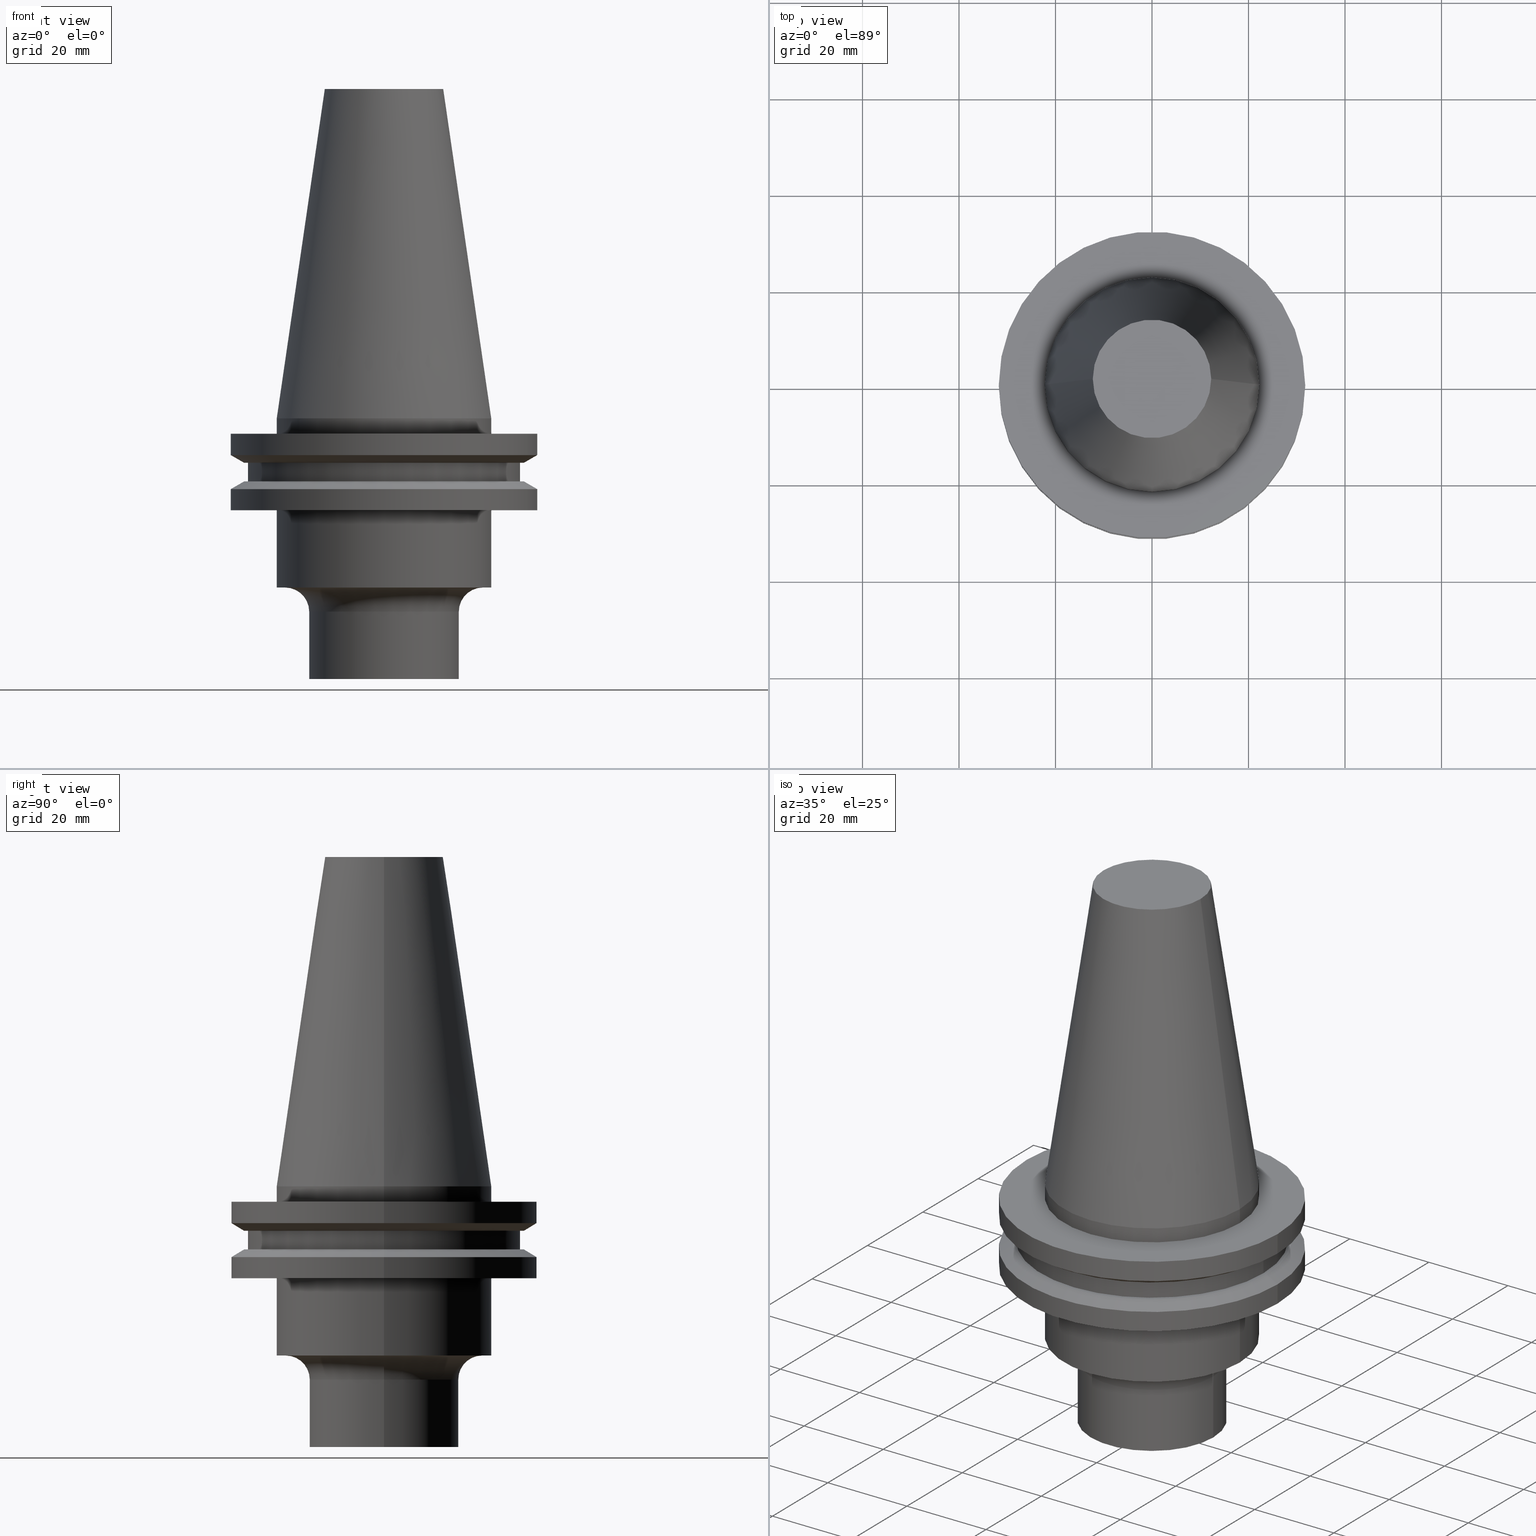
[diagram: canonical four-view strip — front | top / right | iso, engineering-drawing reading convention]
A machine part, canonical four-view strip (front | top / right | iso — engineering-drawing reading convention). The complete STEP part file that produces these views, byte-faithful:
ISO-10303-21;
HEADER;
FILE_DESCRIPTION (( 'STEP AP203' ),
    '1' );
FILE_NAME ('11_326_430.stp',
    '2022-03-07T22:03:33',
    ( '' ),
    ( '' ),
    'SwSTEP 2.0',
    'SolidWorks 2021',
    '' );
FILE_SCHEMA (( 'CONFIG_CONTROL_DESIGN' ));
ENDSEC;

DATA;
#1 = CARTESIAN_POINT ( 'NONE',  ( 0.000000000000000000, 0.000000000000000000, -13.05499999999999794 ) ) ;
#2 = ADVANCED_FACE ( 'NONE', ( #513, #515 ), #155, .F. ) ;
#3 = CARTESIAN_POINT ( 'NONE',  ( 22.22500000000000142, 2.721777511104992849E-15, 0.000000000000000000 ) ) ;
#4 = VERTEX_POINT ( 'NONE', #196 ) ;
#5 = VECTOR ( 'NONE', #271, 999.9999999999998863 ) ;
#6 = DIRECTION ( 'NONE',  ( 0.000000000000000000, 0.000000000000000000, -1.000000000000000000 ) ) ;
#7 = VERTEX_POINT ( 'NONE', #626 ) ;
#8 = CYLINDRICAL_SURFACE ( 'NONE', #413, 22.22500000000000142 ) ;
#9 = ORIENTED_EDGE ( 'NONE', *, *, #397, .T. ) ;
#10 = ADVANCED_FACE ( 'NONE', ( #436 ), #375, .F. ) ;
#11 = DIRECTION ( 'NONE',  ( 1.000000000000000000, 0.000000000000000000, 0.000000000000000000 ) ) ;
#12 = DIRECTION ( 'NONE',  ( 1.000000000000000000, 0.000000000000000000, 0.000000000000000000 ) ) ;
#13 = VERTEX_POINT ( 'NONE', #146 ) ;
#14 = AXIS2_PLACEMENT_3D ( 'NONE', #509, #737, #748 ) ;
#15 = CIRCLE ( 'NONE', #741, 31.75000000000000000 ) ;
#16 = AXIS2_PLACEMENT_3D ( 'NONE', #524, #252, #309 ) ;
#17 = CARTESIAN_POINT ( 'NONE',  ( 0.000000000000000000, 0.000000000000000000, -3.174999999999997158 ) ) ;
#18 = ORIENTED_EDGE ( 'NONE', *, *, #356, .T. ) ;
#19 = PLANE ( 'NONE',  #214 ) ;
#20 = DIRECTION ( 'NONE',  ( 1.000000000000000000, 0.000000000000000000, 0.000000000000000000 ) ) ;
#21 = ORIENTED_EDGE ( 'NONE', *, *, #489, .F. ) ;
#22 = SECURITY_CLASSIFICATION_LEVEL ( 'unclassified' ) ;
#23 = CARTESIAN_POINT ( 'NONE',  ( -31.75000000000000000, 3.888253587292846476E-15, -14.65472339340266572 ) ) ;
#24 = EDGE_CURVE ( 'NONE', #658, #106, #265, .T. ) ;
#25 = ORIENTED_EDGE ( 'NONE', *, *, #635, .T. ) ;
#26 = VECTOR ( 'NONE', #454, 1000.000000000000000 ) ;
#27 = DIRECTION ( 'NONE',  ( 1.000000000000000000, 0.000000000000000000, 0.000000000000000000 ) ) ;
#28 = AXIS2_PLACEMENT_3D ( 'NONE', #330, #43, #342 ) ;
#29 = ORIENTED_EDGE ( 'NONE', *, *, #543, .T. ) ;
#30 = CALENDAR_DATE ( 2022, 7, 3 ) ;
#31 = CARTESIAN_POINT ( 'NONE',  ( 0.000000000000000000, 0.000000000000000000, -40.04999999999999005 ) ) ;
#32 = ORIENTED_EDGE ( 'NONE', *, *, #126, .F. ) ;
#33 = DIRECTION ( 'NONE',  ( -0.000000000000000000, -0.000000000000000000, 1.000000000000000000 ) ) ;
#34 = EDGE_LOOP ( 'NONE', ( #735, #581, #287, #488 ) ) ;
#35 = FACE_OUTER_BOUND ( 'NONE', #34, .T. ) ;
#36 = CYLINDRICAL_SURFACE ( 'NONE', #336, 22.22500000000000142 ) ;
#37 = VECTOR ( 'NONE', #346, 1000.000000000000000 ) ;
#38 = ORIENTED_EDGE ( 'NONE', *, *, #750, .T. ) ;
#39 = CARTESIAN_POINT ( 'NONE',  ( -15.50000000000000000, 1.898202538678397557E-15, 0.000000000000000000 ) ) ;
#40 = ADVANCED_FACE ( 'NONE', ( #319, #82 ), #500, .F. ) ;
#41 = CARTESIAN_POINT ( 'NONE',  ( 0.000000000000000000, 0.000000000000000000, 0.000000000000000000 ) ) ;
#42 = VERTEX_POINT ( 'NONE', #752 ) ;
#43 = DIRECTION ( 'NONE',  ( -0.000000000000000000, -0.000000000000000000, 1.000000000000000000 ) ) ;
#44 = CARTESIAN_POINT ( 'NONE',  ( 0.000000000000000000, 0.000000000000000000, -35.04999999999999716 ) ) ;
#45 = EDGE_CURVE ( 'NONE', #7, #715, #228, .T. ) ;
#46 = ORIENTED_EDGE ( 'NONE', *, *, #409, .T. ) ;
#47 = CARTESIAN_POINT ( 'NONE',  ( 22.22500000000000142, 0.000000000000000000, -19.04999999999999716 ) ) ;
#48 = AXIS2_PLACEMENT_3D ( 'NONE', #220, #762, #290 ) ;
#49 = ORIENTED_EDGE ( 'NONE', *, *, #624, .T. ) ;
#50 = ADVANCED_FACE ( 'NONE', ( #453 ), #690, .T. ) ;
#51 = MECHANICAL_CONTEXT ( 'NONE', #439, 'mechanical' ) ;
#52 = LINE ( 'NONE', #580, #619 ) ;
#53 = VERTEX_POINT ( 'NONE', #235 ) ;
#54 = ADVANCED_FACE ( 'NONE', ( #706 ), #151, .F. ) ;
#55 = DIRECTION ( 'NONE',  ( -0.000000000000000000, -0.000000000000000000, 1.000000000000000000 ) ) ;
#56 = DIRECTION ( 'NONE',  ( -0.000000000000000000, -0.000000000000000000, 1.000000000000000000 ) ) ;
#57 = CC_DESIGN_DATE_AND_TIME_ASSIGNMENT ( #558, #147, ( #703 ) ) ;
#58 = VERTEX_POINT ( 'NONE', #699 ) ;
#59 = LINE ( 'NONE', #426, #339 ) ;
#60 = DIRECTION ( 'NONE',  ( -0.000000000000000000, -0.000000000000000000, 1.000000000000000000 ) ) ;
#61 = EDGE_LOOP ( 'NONE', ( #478, #73 ) ) ;
#62 = VECTOR ( 'NONE', #160, 1000.000000000000000 ) ;
#63 = AXIS2_PLACEMENT_3D ( 'NONE', #659, #548, #490 ) ;
#64 = DIRECTION ( 'NONE',  ( -0.000000000000000000, -0.000000000000000000, 1.000000000000000000 ) ) ;
#65 = EDGE_CURVE ( 'NONE', #675, #331, #122, .T. ) ;
#66 = EDGE_LOOP ( 'NONE', ( #291, #651, #90, #368 ) ) ;
#67 = APPLICATION_PROTOCOL_DEFINITION ( 'international standard', 'config_control_design', 1994, #511 ) ;
#68 = CYLINDRICAL_SURFACE ( 'NONE', #266, 31.75000000000000000 ) ;
#69 = EDGE_CURVE ( 'NONE', #99, #93, #241, .T. ) ;
#70 = ORIENTED_EDGE ( 'NONE', *, *, #221, .T. ) ;
#71 = APPROVAL_STATUS ( 'not_yet_approved' ) ;
#72 = DIRECTION ( 'NONE',  ( -0.000000000000000000, -0.000000000000000000, 1.000000000000000000 ) ) ;
#73 = ORIENTED_EDGE ( 'NONE', *, *, #746, .F. ) ;
#74 = AXIS2_PLACEMENT_3D ( 'NONE', #167, #530, #650 ) ;
#75 = ADVANCED_FACE ( 'NONE', ( #471 ), #36, .T. ) ;
#76 = VECTOR ( 'NONE', #257, 1000.000000000000000 ) ;
#77 = APPROVAL_ROLE ( '' ) ;
#78 = CARTESIAN_POINT ( 'NONE',  ( 0.000000000000000000, 0.000000000000000000, 0.000000000000000000 ) ) ;
#79 = DIRECTION ( 'NONE',  ( 0.000000000000000000, 0.000000000000000000, -1.000000000000000000 ) ) ;
#80 = EDGE_CURVE ( 'NONE', #93, #99, #568, .T. ) ;
#81 = CARTESIAN_POINT ( 'NONE',  ( 0.000000000000000000, 0.000000000000000000, -3.174999999999997158 ) ) ;
#82 = FACE_OUTER_BOUND ( 'NONE', #364, .T. ) ;
#83 = FACE_OUTER_BOUND ( 'NONE', #574, .T. ) ;
#84 = DIRECTION ( 'NONE',  ( 0.000000000000000000, -0.000000000000000000, 1.000000000000000000 ) ) ;
#85 = CIRCLE ( 'NONE', #643, 31.75000000000000000 ) ;
#86 = DIRECTION ( 'NONE',  ( 0.1443082272672999711, 1.767266086135276757E-17, -0.9895327864921755756 ) ) ;
#87 = CIRCLE ( 'NONE', #63, 22.22500000000000142 ) ;
#88 = ORIENTED_EDGE ( 'NONE', *, *, #260, .F. ) ;
#89 = DIRECTION ( 'NONE',  ( -0.000000000000000000, -0.000000000000000000, 1.000000000000000000 ) ) ;
#90 = ORIENTED_EDGE ( 'NONE', *, *, #217, .F. ) ;
#91 = CARTESIAN_POINT ( 'NONE',  ( 0.000000000000000000, 0.000000000000000000, 68.25000000000000000 ) ) ;
#92 = DIRECTION ( 'NONE',  ( 1.000000000000000000, 0.000000000000000000, 0.000000000000000000 ) ) ;
#93 = VERTEX_POINT ( 'NONE', #597 ) ;
#94 = DIRECTION ( 'NONE',  ( -0.000000000000000000, -0.000000000000000000, 1.000000000000000000 ) ) ;
#95 = AXIS2_PLACEMENT_3D ( 'NONE', #108, #462, #173 ) ;
#96 = AXIS2_PLACEMENT_3D ( 'NONE', #592, #616, #118 ) ;
#97 = CARTESIAN_POINT ( 'NONE',  ( 0.000000000000000000, 28.97919780457007732, -9.204999999999996518 ) ) ;
#98 =( GEOMETRIC_REPRESENTATION_CONTEXT ( 3 ) GLOBAL_UNCERTAINTY_ASSIGNED_CONTEXT ( ( #394 ) ) GLOBAL_UNIT_ASSIGNED_CONTEXT ( ( #667, #186, #120 ) ) REPRESENTATION_CONTEXT ( 'NONE', 'WORKASPACE' ) );
#99 = VERTEX_POINT ( 'NONE', #641 ) ;
#100 = EDGE_CURVE ( 'NONE', #672, #405, #177, .T. ) ;
#101 = LINE ( 'NONE', #591, #62 ) ;
#102 = DIRECTION ( 'NONE',  ( -0.000000000000000000, -0.000000000000000000, 1.000000000000000000 ) ) ;
#103 = EDGE_LOOP ( 'NONE', ( #653, #250 ) ) ;
#104 = DIRECTION ( 'NONE',  ( -0.000000000000000000, -0.000000000000000000, 1.000000000000000000 ) ) ;
#105 = DIRECTION ( 'NONE',  ( 0.000000000000000000, 0.000000000000000000, -1.000000000000000000 ) ) ;
#106 = VERTEX_POINT ( 'NONE', #279 ) ;
#107 = DIRECTION ( 'NONE',  ( -0.000000000000000000, -0.000000000000000000, 1.000000000000000000 ) ) ;
#108 = CARTESIAN_POINT ( 'NONE',  ( 0.000000000000000000, 0.000000000000000000, -40.04999999999999716 ) ) ;
#109 = CIRCLE ( 'NONE', #700, 28.97919780457007732 ) ;
#110 = EDGE_CURVE ( 'NONE', #99, #106, #52, .T. ) ;
#111 = EDGE_LOOP ( 'NONE', ( #410, #475 ) ) ;
#112 = CIRCLE ( 'NONE', #445, 28.17999999999999972 ) ;
#113 = CC_DESIGN_SECURITY_CLASSIFICATION ( #703, ( #702 ) ) ;
#114 = CARTESIAN_POINT ( 'NONE',  ( 0.000000000000000000, 0.000000000000000000, -13.05499999999999794 ) ) ;
#115 = DIRECTION ( 'NONE',  ( -0.000000000000000000, -0.000000000000000000, 1.000000000000000000 ) ) ;
#116 = ORIENTED_EDGE ( 'NONE', *, *, #746, .T. ) ;
#117 = DIRECTION ( 'NONE',  ( -0.8660254037844389297, 1.060575238724907285E-16, 0.4999999999999995004 ) ) ;
#118 = DIRECTION ( 'NONE',  ( 1.000000000000000000, 0.000000000000000000, 0.000000000000000000 ) ) ;
#119 = ORIENTED_EDGE ( 'NONE', *, *, #332, .T. ) ;
#120 =( NAMED_UNIT ( * ) SI_UNIT ( $, .STERADIAN. ) SOLID_ANGLE_UNIT ( ) );
#121 = DIRECTION ( 'NONE',  ( 1.000000000000000000, 0.000000000000000000, 0.000000000000000000 ) ) ;
#122 = CIRCLE ( 'NONE', #504, 28.97919780457008088 ) ;
#123 = ORIENTED_EDGE ( 'NONE', *, *, #80, .T. ) ;
#124 = CIRCLE ( 'NONE', #689, 20.50000000000000000 ) ;
#125 = VECTOR ( 'NONE', #107, 1000.000000000000000 ) ;
#126 = EDGE_CURVE ( 'NONE', #129, #236, #276, .T. ) ;
#127 = CYLINDRICAL_SURFACE ( 'NONE', #480, 15.50000000000000000 ) ;
#128 = EDGE_CURVE ( 'NONE', #311, #53, #758, .T. ) ;
#129 = VERTEX_POINT ( 'NONE', #392 ) ;
#130 = SHAPE_DEFINITION_REPRESENTATION ( #773, #180 ) ;
#131 = CARTESIAN_POINT ( 'NONE',  ( 0.000000000000000000, 0.000000000000000000, 0.000000000000000000 ) ) ;
#132 = VERTEX_POINT ( 'NONE', #340 ) ;
#133 = DATE_AND_TIME ( #434, #400 ) ;
#134 = CARTESIAN_POINT ( 'NONE',  ( 31.75000000000000000, 0.000000000000000000, 68.25000000000000000 ) ) ;
#135 = ORIENTED_EDGE ( 'NONE', *, *, #100, .F. ) ;
#136 = ADVANCED_FACE ( 'NONE', ( #637, #525 ), #766, .F. ) ;
#137 = AXIS2_PLACEMENT_3D ( 'NONE', #560, #623, #20 ) ;
#138 = VECTOR ( 'NONE', #142, 1000.000000000000000 ) ;
#139 = PERSON_AND_ORGANIZATION_ROLE ( 'creator' ) ;
#140 = AXIS2_PLACEMENT_3D ( 'NONE', #333, #94, #757 ) ;
#141 = PERSON ( 'UNSPECIFIED', 'UNSPECIFIED', 'UNSPECIFIED', ('UNSPECIFIED'), ('UNSPECIFIED'), ('UNSPECIFIED') ) ;
#142 = DIRECTION ( 'NONE',  ( -0.000000000000000000, -0.000000000000000000, 1.000000000000000000 ) ) ;
#143 = ORIENTED_EDGE ( 'NONE', *, *, #367, .F. ) ;
#144 = VERTEX_POINT ( 'NONE', #334 ) ;
#145 = LINE ( 'NONE', #327, #5 ) ;
#146 = CARTESIAN_POINT ( 'NONE',  ( 31.75000000000000000, 0.000000000000000000, -14.65472339340266572 ) ) ;
#147 = DATE_TIME_ROLE ( 'classification_date' ) ;
#148 = LINE ( 'NONE', #629, #138 ) ;
#149 = EDGE_LOOP ( 'NONE', ( #238, #308, #420, #264 ) ) ;
#150 = MANIFOLD_SOLID_BREP ( 'CKB', #427 ) ;
#151 = TOROIDAL_SURFACE ( 'NONE', #95, 20.50000000000000000, 4.999999999999999112 ) ;
#152 = AXIS2_PLACEMENT_3D ( 'NONE', #246, #56, #484 ) ;
#153 = DIRECTION ( 'NONE',  ( -1.000000000000000000, 0.000000000000000000, -0.000000000000000000 ) ) ;
#154 = CONICAL_SURFACE ( 'NONE', #205, 22.22500000000000142, 0.1448138465474119174 ) ;
#155 = PLANE ( 'NONE',  #411 ) ;
#156 = EDGE_CURVE ( 'NONE', #168, #483, #189, .T. ) ;
#157 = FACE_OUTER_BOUND ( 'NONE', #732, .T. ) ;
#158 = DIRECTION ( 'NONE',  ( -0.000000000000000000, -0.000000000000000000, 1.000000000000000000 ) ) ;
#159 = EDGE_CURVE ( 'NONE', #42, #526, #124, .T. ) ;
#160 = DIRECTION ( 'NONE',  ( -0.000000000000000000, -0.000000000000000000, 1.000000000000000000 ) ) ;
#161 = DIRECTION ( 'NONE',  ( 1.000000000000000000, 0.000000000000000000, 0.000000000000000000 ) ) ;
#162 = ORIENTED_EDGE ( 'NONE', *, *, #332, .F. ) ;
#163 = ADVANCED_FACE ( 'NONE', ( #395 ), #277, .T. ) ;
#164 = CYLINDRICAL_SURFACE ( 'NONE', #28, 22.22500000000000142 ) ;
#165 = DESIGN_CONTEXT ( 'detailed design', #511, 'design' ) ;
#166 = AXIS2_PLACEMENT_3D ( 'NONE', #656, #248, #353 ) ;
#167 = CARTESIAN_POINT ( 'NONE',  ( 0.000000000000000000, 0.000000000000000000, -35.04999999999999716 ) ) ;
#168 = VERTEX_POINT ( 'NONE', #282 ) ;
#169 = DIRECTION ( 'NONE',  ( 1.000000000000000000, 0.000000000000000000, 0.000000000000000000 ) ) ;
#170 = CARTESIAN_POINT ( 'NONE',  ( -15.50000000000000000, 1.898202538678397557E-15, -40.04999999999999005 ) ) ;
#171 = ORIENTED_EDGE ( 'NONE', *, *, #662, .F. ) ;
#172 = CARTESIAN_POINT ( 'NONE',  ( 0.000000000000000000, 0.000000000000000000, 68.25000000000000000 ) ) ;
#173 = DIRECTION ( 'NONE',  ( 1.000000000000000000, 0.000000000000000000, 0.000000000000000000 ) ) ;
#174 = ORIENTED_EDGE ( 'NONE', *, *, #499, .F. ) ;
#175 = PERSON_AND_ORGANIZATION ( #141, #596 ) ;
#176 = CARTESIAN_POINT ( 'NONE',  ( 0.000000000000000000, 0.000000000000000000, 68.25000000000000000 ) ) ;
#177 = CIRCLE ( 'NONE', #313, 15.49999999999999822 ) ;
#178 = EDGE_LOOP ( 'NONE', ( #707, #665 ) ) ;
#179 = AXIS2_PLACEMENT_3D ( 'NONE', #695, #473, #518 ) ;
#180 = ADVANCED_BREP_SHAPE_REPRESENTATION ( '11_326_430', ( #150, #555 ), #98 ) ;
#181 = CARTESIAN_POINT ( 'NONE',  ( -28.97919780457007732, 3.548928183322474856E-15, -9.205000000000005400 ) ) ;
#182 = CARTESIAN_POINT ( 'NONE',  ( 0.000000000000000000, 0.000000000000000000, 68.25000000000000000 ) ) ;
#183 = EDGE_LOOP ( 'NONE', ( #556, #272, #226, #207 ) ) ;
#184 = PLANE ( 'NONE',  #505 ) ;
#185 = ORIENTED_EDGE ( 'NONE', *, *, #476, .T. ) ;
#186 =( NAMED_UNIT ( * ) PLANE_ANGLE_UNIT ( ) SI_UNIT ( $, .RADIAN. ) );
#187 = CARTESIAN_POINT ( 'NONE',  ( 0.000000000000000000, 31.75000000000000000, -3.174999999999993605 ) ) ;
#188 = ORIENTED_EDGE ( 'NONE', *, *, #156, .T. ) ;
#189 = CIRCLE ( 'NONE', #48, 28.17999999999999972 ) ;
#190 = TOROIDAL_SURFACE ( 'NONE', #179, 20.50000000000000000, 4.999999999999999112 ) ;
#191 = CARTESIAN_POINT ( 'NONE',  ( 22.22500000000000142, 0.000000000000000000, -3.174999999999997158 ) ) ;
#192 = CARTESIAN_POINT ( 'NONE',  ( -20.50000000000000000, 2.510525938252074481E-15, -40.04999999999999716 ) ) ;
#193 = EDGE_LOOP ( 'NONE', ( #417, #116, #49, #531 ) ) ;
#194 = LINE ( 'NONE', #435, #754 ) ;
#195 = EDGE_CURVE ( 'NONE', #58, #472, #522, .T. ) ;
#196 = CARTESIAN_POINT ( 'NONE',  ( 31.74999999999999289, 0.000000000000000000, -19.04999999999999716 ) ) ;
#197 = DATE_TIME_ROLE ( 'creation_date' ) ;
#198 = DIRECTION ( 'NONE',  ( -0.000000000000000000, -0.000000000000000000, 1.000000000000000000 ) ) ;
#199 = VERTEX_POINT ( 'NONE', #170 ) ;
#200 = AXIS2_PLACEMENT_3D ( 'NONE', #390, #634, #465 ) ;
#201 = PRODUCT_DEFINITION ( 'UNKNOWN', '', #702, #165 ) ;
#202 = ORIENTED_EDGE ( 'NONE', *, *, #649, .T. ) ;
#203 = AXIS2_PLACEMENT_3D ( 'NONE', #354, #6, #301 ) ;
#204 = PERSON_AND_ORGANIZATION_ROLE ( 'creator' ) ;
#205 = AXIS2_PLACEMENT_3D ( 'NONE', #78, #498, #736 ) ;
#206 = DIRECTION ( 'NONE',  ( 1.000000000000000000, 0.000000000000000000, 0.000000000000000000 ) ) ;
#207 = ORIENTED_EDGE ( 'NONE', *, *, #270, .F. ) ;
#208 = DIRECTION ( 'NONE',  ( 1.000000000000000000, 0.000000000000000000, 0.000000000000000000 ) ) ;
#209 = DIRECTION ( 'NONE',  ( -0.000000000000000000, -0.000000000000000000, 1.000000000000000000 ) ) ;
#210 = ADVANCED_FACE ( 'NONE', ( #589 ), #404, .T. ) ;
#211 = CC_DESIGN_DATE_AND_TIME_ASSIGNMENT ( #133, #197, ( #201 ) ) ;
#212 = DIRECTION ( 'NONE',  ( -0.000000000000000000, -0.000000000000000000, 1.000000000000000000 ) ) ;
#213 = VERTEX_POINT ( 'NONE', #537 ) ;
#214 = AXIS2_PLACEMENT_3D ( 'NONE', #742, #687, #153 ) ;
#215 = CARTESIAN_POINT ( 'NONE',  ( 12.27178102086201150, 2.112318622904291439E-15, 68.25000000000000000 ) ) ;
#216 = APPROVAL_PERSON_ORGANIZATION ( #372, #292, #680 ) ;
#217 = EDGE_CURVE ( 'NONE', #494, #311, #443, .T. ) ;
#218 = DIRECTION ( 'NONE',  ( 1.000000000000000000, 0.000000000000000000, 0.000000000000000000 ) ) ;
#219 = CARTESIAN_POINT ( 'NONE',  ( 0.000000000000000000, 0.000000000000000000, -14.65472339340266572 ) ) ;
#220 = CARTESIAN_POINT ( 'NONE',  ( 0.000000000000000000, 0.000000000000000000, -9.204999999999991189 ) ) ;
#221 = EDGE_CURVE ( 'NONE', #132, #682, #302, .T. ) ;
#222 = EDGE_LOOP ( 'NONE', ( #614, #442, #280, #283 ) ) ;
#223 = CC_DESIGN_PERSON_AND_ORGANIZATION_ASSIGNMENT ( #733, #618, ( #702 ) ) ;
#224 = DIRECTION ( 'NONE',  ( 1.000000000000000000, 0.000000000000000000, 0.000000000000000000 ) ) ;
#225 = DIRECTION ( 'NONE',  ( -0.000000000000000000, -0.000000000000000000, 1.000000000000000000 ) ) ;
#226 = ORIENTED_EDGE ( 'NONE', *, *, #416, .T. ) ;
#227 = CC_DESIGN_PERSON_AND_ORGANIZATION_ASSIGNMENT ( #612, #712, ( #296 ) ) ;
#228 = CIRCLE ( 'NONE', #14, 22.22500000000000142 ) ;
#229 = FACE_OUTER_BOUND ( 'NONE', #647, .T. ) ;
#230 = AXIS2_PLACEMENT_3D ( 'NONE', #17, #747, #268 ) ;
#231 = CIRCLE ( 'NONE', #140, 15.50000000000000000 ) ;
#232 = CARTESIAN_POINT ( 'NONE',  ( 0.000000000000000000, 0.000000000000000000, -35.04999999999999716 ) ) ;
#233 = ORIENTED_EDGE ( 'NONE', *, *, #195, .F. ) ;
#234 = CYLINDRICAL_SURFACE ( 'NONE', #507, 31.75000000000000000 ) ;
#235 = CARTESIAN_POINT ( 'NONE',  ( -31.75000000000000000, 3.888253587292846476E-15, -3.174999999999997158 ) ) ;
#236 = VERTEX_POINT ( 'NONE', #3 ) ;
#237 = DIRECTION ( 'NONE',  ( 1.000000000000000000, 0.000000000000000000, 0.000000000000000000 ) ) ;
#238 = ORIENTED_EDGE ( 'NONE', *, *, #683, .F. ) ;
#239 = DIRECTION ( 'NONE',  ( -0.000000000000000000, -0.000000000000000000, 1.000000000000000000 ) ) ;
#240 = CARTESIAN_POINT ( 'NONE',  ( 0.000000000000000000, 0.000000000000000000, -3.174999999999997158 ) ) ;
#241 = CIRCLE ( 'NONE', #74, 22.22500000000000142 ) ;
#242 = ADVANCED_FACE ( 'NONE', ( #610 ), #482, .T. ) ;
#243 = ORIENTED_EDGE ( 'NONE', *, *, #635, .F. ) ;
#244 = AXIS2_PLACEMENT_3D ( 'NONE', #765, #470, #169 ) ;
#245 = CARTESIAN_POINT ( 'NONE',  ( 0.000000000000000000, 0.000000000000000000, -9.205000000000005400 ) ) ;
#246 = CARTESIAN_POINT ( 'NONE',  ( 0.000000000000000000, 0.000000000000000000, -13.05499999999999794 ) ) ;
#247 = ORIENTED_EDGE ( 'NONE', *, *, #126, .T. ) ;
#248 = DIRECTION ( 'NONE',  ( -0.000000000000000000, -0.000000000000000000, 1.000000000000000000 ) ) ;
#249 = PLANE ( 'NONE',  #678 ) ;
#250 = ORIENTED_EDGE ( 'NONE', *, *, #321, .T. ) ;
#251 = ADVANCED_FACE ( 'NONE', ( #432 ), #540, .T. ) ;
#252 = DIRECTION ( 'NONE',  ( -0.000000000000000000, -0.000000000000000000, 1.000000000000000000 ) ) ;
#253 = DIRECTION ( 'NONE',  ( 1.000000000000000000, 0.000000000000000000, 0.000000000000000000 ) ) ;
#254 = ORIENTED_EDGE ( 'NONE', *, *, #360, .T. ) ;
#255 = CIRCLE ( 'NONE', #457, 31.75000000000000000 ) ;
#256 = CC_DESIGN_APPROVAL ( #564, ( #201 ) ) ;
#257 = DIRECTION ( 'NONE',  ( -0.000000000000000000, -0.000000000000000000, 1.000000000000000000 ) ) ;
#258 = EDGE_LOOP ( 'NONE', ( #523, #449 ) ) ;
#259 = CYLINDRICAL_SURFACE ( 'NONE', #289, 28.17999999999999972 ) ;
#260 = EDGE_CURVE ( 'NONE', #472, #13, #85, .T. ) ;
#261 = ORIENTED_EDGE ( 'NONE', *, *, #584, .T. ) ;
#262 = DATE_AND_TIME ( #495, #716 ) ;
#263 = CARTESIAN_POINT ( 'NONE',  ( -28.17999999999999972, 3.451054679997241634E-15, -9.204999999999991189 ) ) ;
#264 = ORIENTED_EDGE ( 'NONE', *, *, #467, .F. ) ;
#265 = CIRCLE ( 'NONE', #456, 22.22500000000000142 ) ;
#266 = AXIS2_PLACEMENT_3D ( 'NONE', #731, #370, #12 ) ;
#267 = APPROVAL_DATE_TIME ( #566, #406 ) ;
#268 = DIRECTION ( 'NONE',  ( 1.000000000000000000, 0.000000000000000000, 0.000000000000000000 ) ) ;
#269 = DIRECTION ( 'NONE',  ( 1.000000000000000000, 0.000000000000000000, 0.000000000000000000 ) ) ;
#270 = EDGE_CURVE ( 'NONE', #311, #494, #15, .T. ) ;
#271 = DIRECTION ( 'NONE',  ( -0.1443082272672999711, 0.000000000000000000, -0.9895327864921755756 ) ) ;
#272 = ORIENTED_EDGE ( 'NONE', *, *, #382, .T. ) ;
#273 = EDGE_CURVE ( 'NONE', #494, #213, #307, .T. ) ;
#274 = DIRECTION ( 'NONE',  ( 1.000000000000000000, 0.000000000000000000, 0.000000000000000000 ) ) ;
#275 = CARTESIAN_POINT ( 'NONE',  ( 0.000000000000000000, 28.17999999999999972, -13.05499999999999794 ) ) ;
#276 = CIRCLE ( 'NONE', #374, 22.22500000000000142 ) ;
#277 = CONICAL_SURFACE ( 'NONE', #376, 22.22500000000000142, 0.1448138465474119174 ) ;
#278 = ADVANCED_FACE ( 'NONE', ( #546 ), #127, .T. ) ;
#279 = CARTESIAN_POINT ( 'NONE',  ( -22.22500000000000142, 2.721777511104992849E-15, -19.04999999999999716 ) ) ;
#280 = ORIENTED_EDGE ( 'NONE', *, *, #437, .F. ) ;
#281 = DIRECTION ( 'NONE',  ( 1.000000000000000000, 0.000000000000000000, 0.000000000000000000 ) ) ;
#282 = CARTESIAN_POINT ( 'NONE',  ( 28.17999999999999972, 0.000000000000000000, -9.204999999999991189 ) ) ;
#283 = ORIENTED_EDGE ( 'NONE', *, *, #425, .F. ) ;
#284 = CARTESIAN_POINT ( 'NONE',  ( 31.75000000000000000, 3.888253587292846476E-15, -14.65472339340266572 ) ) ;
#285 = CARTESIAN_POINT ( 'NONE',  ( 0.000000000000000000, 0.000000000000000000, -53.99999999999999289 ) ) ;
#286 = ADVANCED_FACE ( 'NONE', ( #298 ), #8, .T. ) ;
#287 = ORIENTED_EDGE ( 'NONE', *, *, #489, .T. ) ;
#288 = CYLINDRICAL_SURFACE ( 'NONE', #541, 31.75000000000000000 ) ;
#289 = AXIS2_PLACEMENT_3D ( 'NONE', #322, #508, #208 ) ;
#290 = DIRECTION ( 'NONE',  ( 1.000000000000000000, 0.000000000000000000, 0.000000000000000000 ) ) ;
#291 = ORIENTED_EDGE ( 'NONE', *, *, #714, .T. ) ;
#292 = APPROVAL ( #383, 'UNSPECIFIED' ) ;
#293 = CARTESIAN_POINT ( 'NONE',  ( 0.000000000000000000, 0.000000000000000000, -9.205000000000005400 ) ) ;
#294 = CARTESIAN_POINT ( 'NONE',  ( 0.000000000000000000, 0.000000000000000000, 68.25000000000000000 ) ) ;
#295 = EDGE_LOOP ( 'NONE', ( #497, #722, #772, #299 ) ) ;
#296 = PRODUCT ( '11_326_430', '11_326_430', '', ( #51 ) ) ;
#297 = DIRECTION ( 'NONE',  ( 1.000000000000000000, 0.000000000000000000, 0.000000000000000000 ) ) ;
#298 = FACE_OUTER_BOUND ( 'NONE', #638, .T. ) ;
#299 = ORIENTED_EDGE ( 'NONE', *, *, #273, .F. ) ;
#300 = ADVANCED_FACE ( 'NONE', ( #613, #542 ), #184, .F. ) ;
#301 = DIRECTION ( 'NONE',  ( -1.000000000000000000, 0.000000000000000000, 0.000000000000000000 ) ) ;
#302 = CIRCLE ( 'NONE', #621, 12.27178102086201150 ) ;
#303 = AXIS2_PLACEMENT_3D ( 'NONE', #358, #115, #533 ) ;
#304 = EDGE_LOOP ( 'NONE', ( #711, #463 ) ) ;
#305 = AXIS2_PLACEMENT_3D ( 'NONE', #698, #692, #753 ) ;
#306 = LOCAL_TIME ( 16, 3, 33.00000000000000000, #447 ) ;
#307 = LINE ( 'NONE', #477, #569 ) ;
#308 = ORIENTED_EDGE ( 'NONE', *, *, #719, .T. ) ;
#309 = DIRECTION ( 'NONE',  ( 1.000000000000000000, 0.000000000000000000, 0.000000000000000000 ) ) ;
#310 = DIRECTION ( 'NONE',  ( -0.000000000000000000, -0.000000000000000000, 1.000000000000000000 ) ) ;
#311 = VERTEX_POINT ( 'NONE', #366 ) ;
#312 = DIRECTION ( 'NONE',  ( -1.000000000000000000, 1.224646799147352714E-16, 0.000000000000000000 ) ) ;
#313 = AXIS2_PLACEMENT_3D ( 'NONE', #285, #710, #218 ) ;
#314 = EDGE_LOOP ( 'NONE', ( #188, #764 ) ) ;
#315 = AXIS2_PLACEMENT_3D ( 'NONE', #512, #567, #373 ) ;
#316 = CONICAL_SURFACE ( 'NONE', #414, 28.97919780457007732, 1.047197551196598297 ) ;
#317 = PERSON_AND_ORGANIZATION_ROLE ( 'classification_officer' ) ;
#318 = CARTESIAN_POINT ( 'NONE',  ( 0.000000000000000000, 0.000000000000000000, 68.25000000000000000 ) ) ;
#319 = FACE_BOUND ( 'NONE', #178, .T. ) ;
#320 = DATE_AND_TIME ( #30, #622 ) ;
#321 = EDGE_CURVE ( 'NONE', #331, #675, #493, .T. ) ;
#322 = CARTESIAN_POINT ( 'NONE',  ( 0.000000000000000000, 0.000000000000000000, 68.25000000000000000 ) ) ;
#323 = ORIENTED_EDGE ( 'NONE', *, *, #683, .T. ) ;
#324 = CARTESIAN_POINT ( 'NONE',  ( -20.50000000000000000, 2.510525938252074481E-15, -35.04999999999999716 ) ) ;
#325 = ORIENTED_EDGE ( 'NONE', *, *, #499, .T. ) ;
#326 = CONICAL_SURFACE ( 'NONE', #469, 31.75000000000000000, 1.047197551196597853 ) ;
#327 = CARTESIAN_POINT ( 'NONE',  ( -22.22500000000000142, 0.000000000000000000, 0.000000000000000000 ) ) ;
#328 = ORIENTED_EDGE ( 'NONE', *, *, #728, .F. ) ;
#329 = ADVANCED_FACE ( 'NONE', ( #423 ), #68, .T. ) ;
#330 = CARTESIAN_POINT ( 'NONE',  ( 0.000000000000000000, 0.000000000000000000, 68.25000000000000000 ) ) ;
#331 = VERTEX_POINT ( 'NONE', #724 ) ;
#332 = EDGE_CURVE ( 'NONE', #53, #213, #527, .T. ) ;
#333 = CARTESIAN_POINT ( 'NONE',  ( 0.000000000000000000, 0.000000000000000000, -40.04999999999999005 ) ) ;
#334 = CARTESIAN_POINT ( 'NONE',  ( 28.97919780457007732, 0.000000000000000000, -9.205000000000005400 ) ) ;
#335 = ORIENTED_EDGE ( 'NONE', *, *, #774, .T. ) ;
#336 = AXIS2_PLACEMENT_3D ( 'NONE', #294, #646, #401 ) ;
#337 = VECTOR ( 'NONE', #86, 999.9999999999998863 ) ;
#338 = CARTESIAN_POINT ( 'NONE',  ( -28.97919780457008088, 0.000000000000000000, -13.05499999999999794 ) ) ;
#339 = VECTOR ( 'NONE', #723, 1000.000000000000000 ) ;
#340 = CARTESIAN_POINT ( 'NONE',  ( -12.27178102086201150, 0.000000000000000000, 68.25000000000000000 ) ) ;
#341 = ORIENTED_EDGE ( 'NONE', *, *, #584, .F. ) ;
#342 = DIRECTION ( 'NONE',  ( 1.000000000000000000, 0.000000000000000000, 0.000000000000000000 ) ) ;
#343 = ADVANCED_FACE ( 'NONE', ( #487, #419 ), #249, .F. ) ;
#344 = DIRECTION ( 'NONE',  ( -1.000000000000000000, 0.000000000000000000, 0.000000000000000000 ) ) ;
#345 = EDGE_LOOP ( 'NONE', ( #38, #335, #739, #605 ) ) ;
#346 = DIRECTION ( 'NONE',  ( 0.8660254037844387076, 1.060575238724906915E-16, -0.4999999999999998890 ) ) ;
#347 = CARTESIAN_POINT ( 'NONE',  ( -31.75000000000000000, 3.888253587292846476E-15, 68.25000000000000000 ) ) ;
#348 = ORIENTED_EDGE ( 'NONE', *, *, #467, .T. ) ;
#349 = AXIS2_PLACEMENT_3D ( 'NONE', #182, #671, #713 ) ;
#350 = APPROVAL_PERSON_ORGANIZATION ( #175, #564, #749 ) ;
#351 = DIRECTION ( 'NONE',  ( 1.000000000000000000, 0.000000000000000000, 0.000000000000000000 ) ) ;
#352 = ORIENTED_EDGE ( 'NONE', *, *, #110, .T. ) ;
#353 = DIRECTION ( 'NONE',  ( 1.000000000000000000, 0.000000000000000000, 0.000000000000000000 ) ) ;
#354 = CARTESIAN_POINT ( 'NONE',  ( 0.000000000000000000, 0.000000000000000000, -14.65472339340266572 ) ) ;
#355 = ORIENTED_EDGE ( 'NONE', *, *, #321, .F. ) ;
#356 = EDGE_CURVE ( 'NONE', #526, #199, #595, .T. ) ;
#357 = FACE_OUTER_BOUND ( 'NONE', #183, .T. ) ;
#358 = CARTESIAN_POINT ( 'NONE',  ( 0.000000000000000000, 0.000000000000000000, -7.605276606597335842 ) ) ;
#359 = ORIENTED_EDGE ( 'NONE', *, *, #437, .T. ) ;
#360 = EDGE_CURVE ( 'NONE', #213, #53, #255, .T. ) ;
#361 = DIRECTION ( 'NONE',  ( 0.000000000000000000, -0.000000000000000000, 1.000000000000000000 ) ) ;
#362 = CIRCLE ( 'NONE', #554, 12.27178102086201150 ) ;
#363 = AXIS2_PLACEMENT_3D ( 'NONE', #645, #464, #274 ) ;
#364 = EDGE_LOOP ( 'NONE', ( #777, #669 ) ) ;
#365 = CARTESIAN_POINT ( 'NONE',  ( 0.000000000000000000, 0.000000000000000000, 0.000000000000000000 ) ) ;
#366 = CARTESIAN_POINT ( 'NONE',  ( -31.75000000000000000, 3.888253587292846476E-15, -7.605276606597335842 ) ) ;
#367 = EDGE_CURVE ( 'NONE', #93, #658, #148, .T. ) ;
#368 = ORIENTED_EDGE ( 'NONE', *, *, #416, .F. ) ;
#369 = PERSON_AND_ORGANIZATION ( #141, #596 ) ;
#370 = DIRECTION ( 'NONE',  ( -0.000000000000000000, -0.000000000000000000, 1.000000000000000000 ) ) ;
#371 = ORIENTED_EDGE ( 'NONE', *, *, #65, .F. ) ;
#372 = PERSON_AND_ORGANIZATION ( #141, #596 ) ;
#373 = DIRECTION ( 'NONE',  ( 1.000000000000000000, 0.000000000000000000, 0.000000000000000000 ) ) ;
#374 = AXIS2_PLACEMENT_3D ( 'NONE', #771, #408, #519 ) ;
#375 = PLANE ( 'NONE',  #137 ) ;
#376 = AXIS2_PLACEMENT_3D ( 'NONE', #41, #105, #344 ) ;
#377 = VECTOR ( 'NONE', #709, 1000.000000000000000 ) ;
#378 = PERSON_AND_ORGANIZATION ( #141, #596 ) ;
#379 = DIRECTION ( 'NONE',  ( 1.000000000000000000, 0.000000000000000000, 0.000000000000000000 ) ) ;
#380 = ORIENTED_EDGE ( 'NONE', *, *, #69, .T. ) ;
#381 = EDGE_LOOP ( 'NONE', ( #135, #598 ) ) ;
#382 = EDGE_CURVE ( 'NONE', #642, #144, #109, .T. ) ;
#383 = APPROVAL_STATUS ( 'not_yet_approved' ) ;
#384 = DIRECTION ( 'NONE',  ( 0.000000000000000000, 0.000000000000000000, -1.000000000000000000 ) ) ;
#385 = DIRECTION ( 'NONE',  ( 1.000000000000000000, 0.000000000000000000, 0.000000000000000000 ) ) ;
#386 = FACE_OUTER_BOUND ( 'NONE', #193, .T. ) ;
#387 = ORIENTED_EDGE ( 'NONE', *, *, #110, .F. ) ;
#388 = AXIS2_PLACEMENT_3D ( 'NONE', #503, #734, #384 ) ;
#389 = DIRECTION ( 'NONE',  ( -0.000000000000000000, -0.000000000000000000, 1.000000000000000000 ) ) ;
#390 = CARTESIAN_POINT ( 'NONE',  ( 0.000000000000000000, 0.000000000000000000, 0.000000000000000000 ) ) ;
#391 = CARTESIAN_POINT ( 'NONE',  ( 0.000000000000000000, 0.000000000000000000, 68.25000000000000000 ) ) ;
#392 = CARTESIAN_POINT ( 'NONE',  ( -22.22500000000000142, 0.000000000000000000, 0.000000000000000000 ) ) ;
#393 = LINE ( 'NONE', #761, #377 ) ;
#394 = UNCERTAINTY_MEASURE_WITH_UNIT (LENGTH_MEASURE( 1.000000000000000082E-05 ), #667, 'distance_accuracy_value', 'NONE');
#395 = FACE_OUTER_BOUND ( 'NONE', #455, .T. ) ;
#396 = VERTEX_POINT ( 'NONE', #751 ) ;
#397 = EDGE_CURVE ( 'NONE', #715, #7, #582, .T. ) ;
#398 = AXIS2_PLACEMENT_3D ( 'NONE', #245, #729, #297 ) ;
#399 = CYLINDRICAL_SURFACE ( 'NONE', #481, 22.22500000000000142 ) ;
#400 = LOCAL_TIME ( 16, 3, 33.00000000000000000, #562 ) ;
#401 = DIRECTION ( 'NONE',  ( 1.000000000000000000, 0.000000000000000000, 0.000000000000000000 ) ) ;
#402 = ORIENTED_EDGE ( 'NONE', *, *, #543, .F. ) ;
#403 = DIRECTION ( 'NONE',  ( 0.000000000000000000, 0.000000000000000000, -1.000000000000000000 ) ) ;
#404 = CYLINDRICAL_SURFACE ( 'NONE', #96, 28.17999999999999972 ) ;
#405 = VERTEX_POINT ( 'NONE', #681 ) ;
#406 = APPROVAL ( #71, 'UNSPECIFIED' ) ;
#407 = LINE ( 'NONE', #284, #37 ) ;
#408 = DIRECTION ( 'NONE',  ( -0.000000000000000000, -0.000000000000000000, 1.000000000000000000 ) ) ;
#409 = EDGE_CURVE ( 'NONE', #682, #132, #362, .T. ) ;
#410 = ORIENTED_EDGE ( 'NONE', *, *, #704, .F. ) ;
#411 = AXIS2_PLACEMENT_3D ( 'NONE', #275, #79, #506 ) ;
#412 = APPROVAL_STATUS ( 'not_yet_approved' ) ;
#413 = AXIS2_PLACEMENT_3D ( 'NONE', #176, #415, #253 ) ;
#414 = AXIS2_PLACEMENT_3D ( 'NONE', #576, #33, #224 ) ;
#415 = DIRECTION ( 'NONE',  ( -0.000000000000000000, -0.000000000000000000, 1.000000000000000000 ) ) ;
#416 = EDGE_CURVE ( 'NONE', #144, #494, #559, .T. ) ;
#417 = ORIENTED_EDGE ( 'NONE', *, *, #774, .F. ) ;
#418 = DIRECTION ( 'NONE',  ( -0.000000000000000000, -0.000000000000000000, 1.000000000000000000 ) ) ;
#419 = FACE_OUTER_BOUND ( 'NONE', #450, .T. ) ;
#420 = ORIENTED_EDGE ( 'NONE', *, *, #738, .T. ) ;
#421 = CC_DESIGN_PERSON_AND_ORGANIZATION_ASSIGNMENT ( #369, #139, ( #702 ) ) ;
#422 = DIRECTION ( 'NONE',  ( 1.000000000000000000, 0.000000000000000000, 0.000000000000000000 ) ) ;
#423 = FACE_OUTER_BOUND ( 'NONE', #222, .T. ) ;
#424 = ORIENTED_EDGE ( 'NONE', *, *, #728, .T. ) ;
#425 = EDGE_CURVE ( 'NONE', #4, #13, #685, .T. ) ;
#426 = CARTESIAN_POINT ( 'NONE',  ( -28.17999999999999972, 3.451054679997241634E-15, 68.25000000000000000 ) ) ;
#427 = CLOSED_SHELL ( 'NONE', ( #54, #50, #286, #242, #688, #210, #602, #329, #694, #163, #552, #491, #40, #578, #300, #571, #251, #2, #444, #136, #759, #639, #343, #75, #10, #278, #615 ) ) ;
#428 = CARTESIAN_POINT ( 'NONE',  ( 0.000000000000000000, 31.74999999999999289, -19.04999999999999716 ) ) ;
#429 = CIRCLE ( 'NONE', #516, 15.50000000000000000 ) ;
#430 = EDGE_LOOP ( 'NONE', ( #233, #611, #547, #88 ) ) ;
#431 = COORDINATED_UNIVERSAL_TIME_OFFSET ( 6, 0, .BEHIND. ) ;
#432 = FACE_OUTER_BOUND ( 'NONE', #485, .T. ) ;
#433 = ORIENTED_EDGE ( 'NONE', *, *, #260, .T. ) ;
#434 = CALENDAR_DATE ( 2022, 7, 3 ) ;
#435 = CARTESIAN_POINT ( 'NONE',  ( -31.75000000000000000, 0.000000000000000000, -14.65472339340266572 ) ) ;
#436 = FACE_OUTER_BOUND ( 'NONE', #381, .T. ) ;
#437 = EDGE_CURVE ( 'NONE', #13, #472, #666, .T. ) ;
#438 = COORDINATED_UNIVERSAL_TIME_OFFSET ( 6, 0, .BEHIND. ) ;
#439 = APPLICATION_CONTEXT ( 'configuration controlled 3d designs of mechanical parts and assemblies' ) ;
#440 = CARTESIAN_POINT ( 'NONE',  ( 0.000000000000000000, 0.000000000000000000, -14.65472339340266572 ) ) ;
#441 = VECTOR ( 'NONE', #158, 1000.000000000000000 ) ;
#442 = ORIENTED_EDGE ( 'NONE', *, *, #195, .T. ) ;
#443 = CIRCLE ( 'NONE', #303, 31.75000000000000000 ) ;
#444 = ADVANCED_FACE ( 'NONE', ( #386 ), #259, .T. ) ;
#445 = AXIS2_PLACEMENT_3D ( 'NONE', #114, #418, #599 ) ;
#446 = APPROVAL_PERSON_ORGANIZATION ( #673, #406, #77 ) ;
#447 = COORDINATED_UNIVERSAL_TIME_OFFSET ( 6, 0, .BEHIND. ) ;
#448 = CARTESIAN_POINT ( 'NONE',  ( 31.75000000000000000, 0.000000000000000000, -7.605276606597335842 ) ) ;
#449 = ORIENTED_EDGE ( 'NONE', *, *, #45, .F. ) ;
#450 = EDGE_LOOP ( 'NONE', ( #254, #119 ) ) ;
#451 = CC_DESIGN_PERSON_AND_ORGANIZATION_ASSIGNMENT ( #740, #204, ( #201 ) ) ;
#452 = DIRECTION ( 'NONE',  ( -0.000000000000000000, -0.000000000000000000, 1.000000000000000000 ) ) ;
#453 = FACE_OUTER_BOUND ( 'NONE', #720, .T. ) ;
#454 = DIRECTION ( 'NONE',  ( 0.8660254037844389297, 0.000000000000000000, 0.4999999999999995004 ) ) ;
#455 = EDGE_LOOP ( 'NONE', ( #534, #185, #544, #174 ) ) ;
#456 = AXIS2_PLACEMENT_3D ( 'NONE', #686, #209, #385 ) ;
#457 = AXIS2_PLACEMENT_3D ( 'NONE', #81, #198, #206 ) ;
#458 = VECTOR ( 'NONE', #117, 1000.000000000000000 ) ;
#459 = FACE_OUTER_BOUND ( 'NONE', #679, .T. ) ;
#460 = DIRECTION ( 'NONE',  ( 1.000000000000000000, 0.000000000000000000, 0.000000000000000000 ) ) ;
#461 = DIRECTION ( 'NONE',  ( -1.000000000000000000, 0.000000000000000000, 0.000000000000000000 ) ) ;
#462 = DIRECTION ( 'NONE',  ( -0.000000000000000000, -0.000000000000000000, 1.000000000000000000 ) ) ;
#463 = ORIENTED_EDGE ( 'NONE', *, *, #382, .F. ) ;
#464 = DIRECTION ( 'NONE',  ( -0.000000000000000000, -0.000000000000000000, 1.000000000000000000 ) ) ;
#465 = DIRECTION ( 'NONE',  ( 1.000000000000000000, 0.000000000000000000, 0.000000000000000000 ) ) ;
#466 = ORIENTED_EDGE ( 'NONE', *, *, #367, .T. ) ;
#467 = EDGE_CURVE ( 'NONE', #199, #565, #429, .T. ) ;
#468 = AXIS2_PLACEMENT_3D ( 'NONE', #440, #452, #379 ) ;
#469 = AXIS2_PLACEMENT_3D ( 'NONE', #219, #403, #461 ) ;
#470 = DIRECTION ( 'NONE',  ( -0.000000000000000000, -0.000000000000000000, 1.000000000000000000 ) ) ;
#471 = FACE_OUTER_BOUND ( 'NONE', #520, .T. ) ;
#472 = VERTEX_POINT ( 'NONE', #23 ) ;
#473 = DIRECTION ( 'NONE',  ( -0.000000000000000000, -0.000000000000000000, 1.000000000000000000 ) ) ;
#474 = DIRECTION ( 'NONE',  ( -0.000000000000000000, -0.000000000000000000, 1.000000000000000000 ) ) ;
#475 = ORIENTED_EDGE ( 'NONE', *, *, #536, .F. ) ;
#476 = EDGE_CURVE ( 'NONE', #682, #236, #496, .T. ) ;
#477 = CARTESIAN_POINT ( 'NONE',  ( 31.75000000000000000, 0.000000000000000000, 68.25000000000000000 ) ) ;
#478 = ORIENTED_EDGE ( 'NONE', *, *, #750, .F. ) ;
#479 = CARTESIAN_POINT ( 'NONE',  ( 15.50000000000000000, 0.000000000000000000, 0.000000000000000000 ) ) ;
#480 = AXIS2_PLACEMENT_3D ( 'NONE', #131, #310, #660 ) ;
#481 = AXIS2_PLACEMENT_3D ( 'NONE', #391, #636, #588 ) ;
#482 = CYLINDRICAL_SURFACE ( 'NONE', #349, 31.75000000000000000 ) ;
#483 = VERTEX_POINT ( 'NONE', #263 ) ;
#484 = DIRECTION ( 'NONE',  ( 1.000000000000000000, 0.000000000000000000, 0.000000000000000000 ) ) ;
#485 = EDGE_LOOP ( 'NONE', ( #661, #371, #29, #433 ) ) ;
#486 = LINE ( 'NONE', #479, #125 ) ;
#487 = FACE_BOUND ( 'NONE', #258, .T. ) ;
#488 = ORIENTED_EDGE ( 'NONE', *, *, #575, .T. ) ;
#489 = EDGE_CURVE ( 'NONE', #42, #565, #727, .T. ) ;
#490 = DIRECTION ( 'NONE',  ( 1.000000000000000000, 0.000000000000000000, 0.000000000000000000 ) ) ;
#491 = ADVANCED_FACE ( 'NONE', ( #83 ), #19, .F. ) ;
#492 = DIRECTION ( 'NONE',  ( 0.000000000000000000, 0.000000000000000000, -1.000000000000000000 ) ) ;
#493 = CIRCLE ( 'NONE', #152, 28.97919780457008088 ) ;
#494 = VERTEX_POINT ( 'NONE', #448 ) ;
#495 = CALENDAR_DATE ( 2022, 7, 3 ) ;
#496 = LINE ( 'NONE', #627, #337 ) ;
#497 = ORIENTED_EDGE ( 'NONE', *, *, #217, .T. ) ;
#498 = DIRECTION ( 'NONE',  ( 0.000000000000000000, 0.000000000000000000, -1.000000000000000000 ) ) ;
#499 = EDGE_CURVE ( 'NONE', #132, #129, #145, .T. ) ;
#500 = PLANE ( 'NONE',  #726 ) ;
#501 = ORIENTED_EDGE ( 'NONE', *, *, #708, .F. ) ;
#502 = CALENDAR_DATE ( 2022, 7, 3 ) ;
#503 = CARTESIAN_POINT ( 'NONE',  ( 20.50000000000000000, 0.000000000000000000, -40.04999999999999716 ) ) ;
#504 = AXIS2_PLACEMENT_3D ( 'NONE', #652, #474, #351 ) ;
#505 = AXIS2_PLACEMENT_3D ( 'NONE', #428, #361, #718 ) ;
#506 = DIRECTION ( 'NONE',  ( -1.000000000000000000, 0.000000000000000000, -0.000000000000000000 ) ) ;
#507 = AXIS2_PLACEMENT_3D ( 'NONE', #91, #705, #579 ) ;
#508 = DIRECTION ( 'NONE',  ( -0.000000000000000000, -0.000000000000000000, 1.000000000000000000 ) ) ;
#509 = CARTESIAN_POINT ( 'NONE',  ( 0.000000000000000000, 0.000000000000000000, -3.174999999999997158 ) ) ;
#510 = APPROVAL_DATE_TIME ( #262, #564 ) ;
#511 = APPLICATION_CONTEXT ( 'configuration controlled 3d designs of mechanical parts and assemblies' ) ;
#512 = CARTESIAN_POINT ( 'NONE',  ( 0.000000000000000000, 0.000000000000000000, -19.04999999999999716 ) ) ;
#513 = FACE_BOUND ( 'NONE', #61, .T. ) ;
#514 = FACE_OUTER_BOUND ( 'NONE', #701, .T. ) ;
#515 = FACE_OUTER_BOUND ( 'NONE', #103, .T. ) ;
#516 = AXIS2_PLACEMENT_3D ( 'NONE', #31, #563, #27 ) ;
#517 = CIRCLE ( 'NONE', #398, 28.97919780457007732 ) ;
#518 = DIRECTION ( 'NONE',  ( 1.000000000000000000, 0.000000000000000000, 0.000000000000000000 ) ) ;
#519 = DIRECTION ( 'NONE',  ( 1.000000000000000000, 0.000000000000000000, 0.000000000000000000 ) ) ;
#520 = EDGE_LOOP ( 'NONE', ( #243, #590, #424, #32 ) ) ;
#521 = CARTESIAN_POINT ( 'NONE',  ( 15.50000000000000000, 0.000000000000000000, -40.04999999999999005 ) ) ;
#522 = LINE ( 'NONE', #347, #767 ) ;
#523 = ORIENTED_EDGE ( 'NONE', *, *, #397, .F. ) ;
#524 = CARTESIAN_POINT ( 'NONE',  ( 0.000000000000000000, 0.000000000000000000, -19.04999999999999716 ) ) ;
#525 = FACE_BOUND ( 'NONE', #314, .T. ) ;
#526 = VERTEX_POINT ( 'NONE', #324 ) ;
#527 = CIRCLE ( 'NONE', #606, 31.75000000000000000 ) ;
#528 = VECTOR ( 'NONE', #535, 1000.000000000000000 ) ;
#529 = FACE_OUTER_BOUND ( 'NONE', #430, .T. ) ;
#530 = DIRECTION ( 'NONE',  ( -0.000000000000000000, -0.000000000000000000, 1.000000000000000000 ) ) ;
#531 = ORIENTED_EDGE ( 'NONE', *, *, #557, .F. ) ;
#532 = DIRECTION ( 'NONE',  ( 0.000000000000000000, 0.000000000000000000, 1.000000000000000000 ) ) ;
#533 = DIRECTION ( 'NONE',  ( 1.000000000000000000, 0.000000000000000000, 0.000000000000000000 ) ) ;
#534 = ORIENTED_EDGE ( 'NONE', *, *, #409, .F. ) ;
#535 = DIRECTION ( 'NONE',  ( -0.000000000000000000, -0.000000000000000000, 1.000000000000000000 ) ) ;
#536 = EDGE_CURVE ( 'NONE', #58, #4, #654, .T. ) ;
#537 = CARTESIAN_POINT ( 'NONE',  ( 31.75000000000000000, 0.000000000000000000, -3.174999999999997158 ) ) ;
#538 = ORIENTED_EDGE ( 'NONE', *, *, #270, .T. ) ;
#539 = AXIS2_PLACEMENT_3D ( 'NONE', #97, #586, #92 ) ;
#540 = CONICAL_SURFACE ( 'NONE', #203, 31.75000000000000000, 1.047197551196597853 ) ;
#541 = AXIS2_PLACEMENT_3D ( 'NONE', #172, #104, #281 ) ;
#542 = FACE_BOUND ( 'NONE', #577, .T. ) ;
#543 = EDGE_CURVE ( 'NONE', #675, #472, #194, .T. ) ;
#544 = ORIENTED_EDGE ( 'NONE', *, *, #708, .T. ) ;
#545 = DIRECTION ( 'NONE',  ( 1.000000000000000000, 0.000000000000000000, 0.000000000000000000 ) ) ;
#546 = FACE_OUTER_BOUND ( 'NONE', #149, .T. ) ;
#547 = ORIENTED_EDGE ( 'NONE', *, *, #425, .T. ) ;
#548 = DIRECTION ( 'NONE',  ( -0.000000000000000000, -0.000000000000000000, 1.000000000000000000 ) ) ;
#549 = PRODUCT_RELATED_PRODUCT_CATEGORY ( 'detail', '', ( #296 ) ) ;
#550 = DIRECTION ( 'NONE',  ( 1.000000000000000000, 0.000000000000000000, 0.000000000000000000 ) ) ;
#551 = ORIENTED_EDGE ( 'NONE', *, *, #100, .T. ) ;
#552 = ADVANCED_FACE ( 'NONE', ( #620 ), #154, .T. ) ;
#553 = CARTESIAN_POINT ( 'NONE',  ( 0.000000000000000000, 0.000000000000000000, -9.205000000000005400 ) ) ;
#554 = AXIS2_PLACEMENT_3D ( 'NONE', #318, #212, #573 ) ;
#555 = AXIS2_PLACEMENT_3D ( 'NONE', #365, #532, #545 ) ;
#556 = ORIENTED_EDGE ( 'NONE', *, *, #763, .F. ) ;
#557 = EDGE_CURVE ( 'NONE', #483, #168, #730, .T. ) ;
#558 = DATE_AND_TIME ( #502, #609 ) ;
#559 = LINE ( 'NONE', #633, #26 ) ;
#560 = CARTESIAN_POINT ( 'NONE',  ( 0.000000000000000000, 15.49999999999999822, -53.99999999999999289 ) ) ;
#561 = CC_DESIGN_PERSON_AND_ORGANIZATION_ASSIGNMENT ( #378, #317, ( #703 ) ) ;
#562 = COORDINATED_UNIVERSAL_TIME_OFFSET ( 6, 0, .BEHIND. ) ;
#563 = DIRECTION ( 'NONE',  ( -0.000000000000000000, -0.000000000000000000, 1.000000000000000000 ) ) ;
#564 = APPROVAL ( #412, 'UNSPECIFIED' ) ;
#565 = VERTEX_POINT ( 'NONE', #521 ) ;
#566 = DATE_AND_TIME ( #684, #306 ) ;
#567 = DIRECTION ( 'NONE',  ( -0.000000000000000000, -0.000000000000000000, 1.000000000000000000 ) ) ;
#568 = CIRCLE ( 'NONE', #594, 22.22500000000000142 ) ;
#569 = VECTOR ( 'NONE', #64, 1000.000000000000000 ) ;
#570 = CARTESIAN_POINT ( 'NONE',  ( 0.000000000000000000, 22.22500000000000142, -35.04999999999999716 ) ) ;
#571 = ADVANCED_FACE ( 'NONE', ( #529 ), #234, .T. ) ;
#572 = CC_DESIGN_APPROVAL ( #292, ( #702 ) ) ;
#573 = DIRECTION ( 'NONE',  ( 1.000000000000000000, 0.000000000000000000, 0.000000000000000000 ) ) ;
#574 = EDGE_LOOP ( 'NONE', ( #70, #46 ) ) ;
#575 = EDGE_CURVE ( 'NONE', #565, #199, #231, .T. ) ;
#576 = CARTESIAN_POINT ( 'NONE',  ( 0.000000000000000000, 0.000000000000000000, -9.205000000000005400 ) ) ;
#577 = EDGE_LOOP ( 'NONE', ( #601, #261 ) ) ;
#578 = ADVANCED_FACE ( 'NONE', ( #229 ), #164, .T. ) ;
#579 = DIRECTION ( 'NONE',  ( 1.000000000000000000, 0.000000000000000000, 0.000000000000000000 ) ) ;
#580 = CARTESIAN_POINT ( 'NONE',  ( -22.22500000000000142, 2.721777511104992849E-15, 68.25000000000000000 ) ) ;
#581 = ORIENTED_EDGE ( 'NONE', *, *, #159, .F. ) ;
#582 = CIRCLE ( 'NONE', #230, 22.22500000000000142 ) ;
#583 = CIRCLE ( 'NONE', #305, 20.50000000000000000 ) ;
#584 = EDGE_CURVE ( 'NONE', #106, #658, #743, .T. ) ;
#585 = LINE ( 'NONE', #39, #756 ) ;
#586 = DIRECTION ( 'NONE',  ( 0.000000000000000000, -0.000000000000000000, 1.000000000000000000 ) ) ;
#587 = ORIENTED_EDGE ( 'NONE', *, *, #128, .F. ) ;
#588 = DIRECTION ( 'NONE',  ( 1.000000000000000000, 0.000000000000000000, 0.000000000000000000 ) ) ;
#589 = FACE_OUTER_BOUND ( 'NONE', #345, .T. ) ;
#590 = ORIENTED_EDGE ( 'NONE', *, *, #45, .T. ) ;
#591 = CARTESIAN_POINT ( 'NONE',  ( 28.17999999999999972, 0.000000000000000000, 68.25000000000000000 ) ) ;
#592 = CARTESIAN_POINT ( 'NONE',  ( 0.000000000000000000, 0.000000000000000000, 68.25000000000000000 ) ) ;
#593 = EDGE_LOOP ( 'NONE', ( #725, #768, #325, #247 ) ) ;
#594 = AXIS2_PLACEMENT_3D ( 'NONE', #44, #755, #460 ) ;
#595 = CIRCLE ( 'NONE', #630, 5.000000000000000888 ) ;
#596 = ORGANIZATION ( 'UNSPECIFIED', 'UNSPECIFIED', '' ) ;
#597 = CARTESIAN_POINT ( 'NONE',  ( 22.22500000000000142, 0.000000000000000000, -35.04999999999999716 ) ) ;
#598 = ORIENTED_EDGE ( 'NONE', *, *, #719, .F. ) ;
#599 = DIRECTION ( 'NONE',  ( 1.000000000000000000, 0.000000000000000000, 0.000000000000000000 ) ) ;
#600 = CARTESIAN_POINT ( 'NONE',  ( 0.000000000000000000, 0.000000000000000000, 68.25000000000000000 ) ) ;
#601 = ORIENTED_EDGE ( 'NONE', *, *, #24, .T. ) ;
#602 = ADVANCED_FACE ( 'NONE', ( #459 ), #326, .T. ) ;
#603 = CARTESIAN_POINT ( 'NONE',  ( -28.17999999999999972, 3.451054679997241634E-15, -13.05499999999999794 ) ) ;
#604 = DIRECTION ( 'NONE',  ( 1.000000000000000000, 0.000000000000000000, 0.000000000000000000 ) ) ;
#605 = ORIENTED_EDGE ( 'NONE', *, *, #624, .F. ) ;
#606 = AXIS2_PLACEMENT_3D ( 'NONE', #240, #664, #121 ) ;
#607 = APPLICATION_PROTOCOL_DEFINITION ( 'international standard', 'config_control_design', 1994, #439 ) ;
#608 = CIRCLE ( 'NONE', #655, 28.17999999999999972 ) ;
#609 = LOCAL_TIME ( 16, 3, 33.00000000000000000, #670 ) ;
#610 = FACE_OUTER_BOUND ( 'NONE', #295, .T. ) ;
#611 = ORIENTED_EDGE ( 'NONE', *, *, #536, .T. ) ;
#612 = PERSON_AND_ORGANIZATION ( #141, #596 ) ;
#613 = FACE_OUTER_BOUND ( 'NONE', #111, .T. ) ;
#614 = ORIENTED_EDGE ( 'NONE', *, *, #704, .T. ) ;
#615 = ADVANCED_FACE ( 'NONE', ( #35 ), #190, .F. ) ;
#616 = DIRECTION ( 'NONE',  ( -0.000000000000000000, -0.000000000000000000, 1.000000000000000000 ) ) ;
#617 = ORIENTED_EDGE ( 'NONE', *, *, #24, .F. ) ;
#618 = PERSON_AND_ORGANIZATION_ROLE ( 'design_supplier' ) ;
#619 = VECTOR ( 'NONE', #102, 1000.000000000000000 ) ;
#620 = FACE_OUTER_BOUND ( 'NONE', #593, .T. ) ;
#621 = AXIS2_PLACEMENT_3D ( 'NONE', #600, #72, #550 ) ;
#622 = LOCAL_TIME ( 16, 3, 33.00000000000000000, #438 ) ;
#623 = DIRECTION ( 'NONE',  ( 0.000000000000000000, -0.000000000000000000, 1.000000000000000000 ) ) ;
#624 = EDGE_CURVE ( 'NONE', #396, #168, #101, .T. ) ;
#625 = DIRECTION ( 'NONE',  ( 1.224646799147353207E-16, 1.000000000000000000, 0.000000000000000000 ) ) ;
#626 = CARTESIAN_POINT ( 'NONE',  ( -22.22500000000000142, 2.721777511104992849E-15, -3.174999999999997158 ) ) ;
#627 = CARTESIAN_POINT ( 'NONE',  ( 22.22500000000000142, 2.721777511104992849E-15, 0.000000000000000000 ) ) ;
#628 = ORIENTED_EDGE ( 'NONE', *, *, #273, .T. ) ;
#629 = CARTESIAN_POINT ( 'NONE',  ( 22.22500000000000142, 0.000000000000000000, 68.25000000000000000 ) ) ;
#630 = AXIS2_PLACEMENT_3D ( 'NONE', #192, #625, #312 ) ;
#631 = EDGE_LOOP ( 'NONE', ( #171, #18, #348, #21 ) ) ;
#632 = AXIS2_PLACEMENT_3D ( 'NONE', #293, #55, #422 ) ;
#633 = CARTESIAN_POINT ( 'NONE',  ( 28.97919780457007732, 0.000000000000000000, -9.205000000000005400 ) ) ;
#634 = DIRECTION ( 'NONE',  ( -0.000000000000000000, -0.000000000000000000, 1.000000000000000000 ) ) ;
#635 = EDGE_CURVE ( 'NONE', #7, #129, #393, .T. ) ;
#636 = DIRECTION ( 'NONE',  ( -0.000000000000000000, -0.000000000000000000, 1.000000000000000000 ) ) ;
#637 = FACE_OUTER_BOUND ( 'NONE', #304, .T. ) ;
#638 = EDGE_LOOP ( 'NONE', ( #9, #25, #501, #328 ) ) ;
#639 = ADVANCED_FACE ( 'NONE', ( #514 ), #288, .T. ) ;
#640 = CARTESIAN_POINT ( 'NONE',  ( 15.49999999999999822, 0.000000000000000000, -53.99999999999999289 ) ) ;
#641 = CARTESIAN_POINT ( 'NONE',  ( -22.22500000000000142, 2.721777511104992849E-15, -35.04999999999999716 ) ) ;
#642 = VERTEX_POINT ( 'NONE', #648 ) ;
#643 = AXIS2_PLACEMENT_3D ( 'NONE', #657, #60, #604 ) ;
#644 = CIRCLE ( 'NONE', #166, 15.49999999999999822 ) ;
#645 = CARTESIAN_POINT ( 'NONE',  ( 0.000000000000000000, 0.000000000000000000, -19.04999999999999716 ) ) ;
#646 = DIRECTION ( 'NONE',  ( -0.000000000000000000, -0.000000000000000000, 1.000000000000000000 ) ) ;
#647 = EDGE_LOOP ( 'NONE', ( #387, #380, #466, #341 ) ) ;
#648 = CARTESIAN_POINT ( 'NONE',  ( -28.97919780457007732, 3.718590885307660666E-15, -9.205000000000005400 ) ) ;
#649 = EDGE_CURVE ( 'NONE', #331, #13, #407, .T. ) ;
#650 = DIRECTION ( 'NONE',  ( 1.000000000000000000, 0.000000000000000000, 0.000000000000000000 ) ) ;
#651 = ORIENTED_EDGE ( 'NONE', *, *, #763, .T. ) ;
#652 = CARTESIAN_POINT ( 'NONE',  ( 0.000000000000000000, 0.000000000000000000, -13.05499999999999794 ) ) ;
#653 = ORIENTED_EDGE ( 'NONE', *, *, #65, .T. ) ;
#654 = CIRCLE ( 'NONE', #315, 31.74999999999999289 ) ;
#655 = AXIS2_PLACEMENT_3D ( 'NONE', #1, #239, #11 ) ;
#656 = CARTESIAN_POINT ( 'NONE',  ( 0.000000000000000000, 0.000000000000000000, -53.99999999999999289 ) ) ;
#657 = CARTESIAN_POINT ( 'NONE',  ( 0.000000000000000000, 0.000000000000000000, -14.65472339340266572 ) ) ;
#658 = VERTEX_POINT ( 'NONE', #47 ) ;
#659 = CARTESIAN_POINT ( 'NONE',  ( 0.000000000000000000, 0.000000000000000000, 0.000000000000000000 ) ) ;
#660 = DIRECTION ( 'NONE',  ( 1.000000000000000000, 0.000000000000000000, 0.000000000000000000 ) ) ;
#661 = ORIENTED_EDGE ( 'NONE', *, *, #649, .F. ) ;
#662 = EDGE_CURVE ( 'NONE', #526, #42, #583, .T. ) ;
#663 = LINE ( 'NONE', #775, #528 ) ;
#664 = DIRECTION ( 'NONE',  ( -0.000000000000000000, -0.000000000000000000, 1.000000000000000000 ) ) ;
#665 = ORIENTED_EDGE ( 'NONE', *, *, #662, .T. ) ;
#666 = CIRCLE ( 'NONE', #468, 31.75000000000000000 ) ;
#667 =( LENGTH_UNIT ( ) NAMED_UNIT ( * ) SI_UNIT ( .MILLI., .METRE. ) );
#668 = DIRECTION ( 'NONE',  ( -1.000000000000000000, 0.000000000000000000, -0.000000000000000000 ) ) ;
#669 = ORIENTED_EDGE ( 'NONE', *, *, #69, .F. ) ;
#670 = COORDINATED_UNIVERSAL_TIME_OFFSET ( 6, 0, .BEHIND. ) ;
#671 = DIRECTION ( 'NONE',  ( -0.000000000000000000, -0.000000000000000000, 1.000000000000000000 ) ) ;
#672 = VERTEX_POINT ( 'NONE', #640 ) ;
#673 = PERSON_AND_ORGANIZATION ( #141, #596 ) ;
#674 = DIRECTION ( 'NONE',  ( -0.8660254037844387076, 0.000000000000000000, -0.4999999999999998890 ) ) ;
#675 = VERTEX_POINT ( 'NONE', #338 ) ;
#676 = APPROVAL_DATE_TIME ( #320, #292 ) ;
#677 = DIRECTION ( 'NONE',  ( 1.000000000000000000, 0.000000000000000000, 0.000000000000000000 ) ) ;
#678 = AXIS2_PLACEMENT_3D ( 'NONE', #187, #492, #668 ) ;
#679 = EDGE_LOOP ( 'NONE', ( #355, #202, #359, #402 ) ) ;
#680 = APPROVAL_ROLE ( '' ) ;
#681 = CARTESIAN_POINT ( 'NONE',  ( -15.49999999999999822, 1.898202538678397163E-15, -53.99999999999999289 ) ) ;
#682 = VERTEX_POINT ( 'NONE', #215 ) ;
#683 = EDGE_CURVE ( 'NONE', #405, #199, #585, .T. ) ;
#684 = CALENDAR_DATE ( 2022, 7, 3 ) ;
#685 = LINE ( 'NONE', #134, #76 ) ;
#686 = CARTESIAN_POINT ( 'NONE',  ( 0.000000000000000000, 0.000000000000000000, -19.04999999999999716 ) ) ;
#687 = DIRECTION ( 'NONE',  ( 0.000000000000000000, 0.000000000000000000, -1.000000000000000000 ) ) ;
#688 = ADVANCED_FACE ( 'NONE', ( #770 ), #316, .T. ) ;
#689 = AXIS2_PLACEMENT_3D ( 'NONE', #232, #696, #161 ) ;
#690 = CYLINDRICAL_SURFACE ( 'NONE', #200, 15.50000000000000000 ) ;
#691 = CONICAL_SURFACE ( 'NONE', #632, 28.97919780457007732, 1.047197551196598297 ) ;
#692 = DIRECTION ( 'NONE',  ( -0.000000000000000000, -0.000000000000000000, 1.000000000000000000 ) ) ;
#693 = CARTESIAN_POINT ( 'NONE',  ( -31.75000000000000000, 3.888253587292846476E-15, 68.25000000000000000 ) ) ;
#694 = ADVANCED_FACE ( 'NONE', ( #157 ), #399, .T. ) ;
#695 = CARTESIAN_POINT ( 'NONE',  ( 0.000000000000000000, 0.000000000000000000, -40.04999999999999716 ) ) ;
#696 = DIRECTION ( 'NONE',  ( -0.000000000000000000, -0.000000000000000000, 1.000000000000000000 ) ) ;
#697 = ORIENTED_EDGE ( 'NONE', *, *, #738, .F. ) ;
#698 = CARTESIAN_POINT ( 'NONE',  ( 0.000000000000000000, 0.000000000000000000, -35.04999999999999716 ) ) ;
#699 = CARTESIAN_POINT ( 'NONE',  ( -31.74999999999999289, 3.888253587292845687E-15, -19.04999999999999716 ) ) ;
#700 = AXIS2_PLACEMENT_3D ( 'NONE', #553, #389, #677 ) ;
#701 = EDGE_LOOP ( 'NONE', ( #587, #538, #628, #162 ) ) ;
#702 = PRODUCT_DEFINITION_FORMATION_WITH_SPECIFIED_SOURCE ( 'ANY', '', #296, .NOT_KNOWN. ) ;
#703 = SECURITY_CLASSIFICATION ( '', '', #22 ) ;
#704 = EDGE_CURVE ( 'NONE', #4, #58, #769, .T. ) ;
#705 = DIRECTION ( 'NONE',  ( -0.000000000000000000, -0.000000000000000000, 1.000000000000000000 ) ) ;
#706 = FACE_OUTER_BOUND ( 'NONE', #631, .T. ) ;
#707 = ORIENTED_EDGE ( 'NONE', *, *, #159, .T. ) ;
#708 = EDGE_CURVE ( 'NONE', #236, #129, #87, .T. ) ;
#709 = DIRECTION ( 'NONE',  ( -0.000000000000000000, -0.000000000000000000, 1.000000000000000000 ) ) ;
#710 = DIRECTION ( 'NONE',  ( -0.000000000000000000, -0.000000000000000000, 1.000000000000000000 ) ) ;
#711 = ORIENTED_EDGE ( 'NONE', *, *, #714, .F. ) ;
#712 = PERSON_AND_ORGANIZATION_ROLE ( 'design_owner' ) ;
#713 = DIRECTION ( 'NONE',  ( 1.000000000000000000, 0.000000000000000000, 0.000000000000000000 ) ) ;
#714 = EDGE_CURVE ( 'NONE', #144, #642, #517, .T. ) ;
#715 = VERTEX_POINT ( 'NONE', #191 ) ;
#716 = LOCAL_TIME ( 16, 3, 33.00000000000000000, #431 ) ;
#717 = LINE ( 'NONE', #181, #458 ) ;
#718 = DIRECTION ( 'NONE',  ( 1.000000000000000000, 0.000000000000000000, 0.000000000000000000 ) ) ;
#719 = EDGE_CURVE ( 'NONE', #405, #672, #644, .T. ) ;
#720 = EDGE_LOOP ( 'NONE', ( #551, #323, #744, #697 ) ) ;
#721 = CARTESIAN_POINT ( 'NONE',  ( 0.000000000000000000, 0.000000000000000000, -7.605276606597335842 ) ) ;
#722 = ORIENTED_EDGE ( 'NONE', *, *, #128, .T. ) ;
#723 = DIRECTION ( 'NONE',  ( -0.000000000000000000, -0.000000000000000000, 1.000000000000000000 ) ) ;
#724 = CARTESIAN_POINT ( 'NONE',  ( 28.97919780457008088, 3.718590885307660666E-15, -13.05499999999999794 ) ) ;
#725 = ORIENTED_EDGE ( 'NONE', *, *, #476, .F. ) ;
#726 = AXIS2_PLACEMENT_3D ( 'NONE', #570, #84, #269 ) ;
#727 = CIRCLE ( 'NONE', #388, 4.999999999999997335 ) ;
#728 = EDGE_CURVE ( 'NONE', #715, #236, #663, .T. ) ;
#729 = DIRECTION ( 'NONE',  ( -0.000000000000000000, -0.000000000000000000, 1.000000000000000000 ) ) ;
#730 = CIRCLE ( 'NONE', #244, 28.17999999999999972 ) ;
#731 = CARTESIAN_POINT ( 'NONE',  ( 0.000000000000000000, 0.000000000000000000, 68.25000000000000000 ) ) ;
#732 = EDGE_LOOP ( 'NONE', ( #123, #352, #617, #143 ) ) ;
#733 = PERSON_AND_ORGANIZATION ( #141, #596 ) ;
#734 = DIRECTION ( 'NONE',  ( 0.000000000000000000, -1.000000000000000000, 0.000000000000000000 ) ) ;
#735 = ORIENTED_EDGE ( 'NONE', *, *, #356, .F. ) ;
#736 = DIRECTION ( 'NONE',  ( -1.000000000000000000, 0.000000000000000000, 0.000000000000000000 ) ) ;
#737 = DIRECTION ( 'NONE',  ( -0.000000000000000000, -0.000000000000000000, 1.000000000000000000 ) ) ;
#738 = EDGE_CURVE ( 'NONE', #672, #565, #486, .T. ) ;
#739 = ORIENTED_EDGE ( 'NONE', *, *, #156, .F. ) ;
#740 = PERSON_AND_ORGANIZATION ( #141, #596 ) ;
#741 = AXIS2_PLACEMENT_3D ( 'NONE', #721, #776, #237 ) ;
#742 = CARTESIAN_POINT ( 'NONE',  ( 0.000000000000000000, 12.27178102086201150, 68.25000000000000000 ) ) ;
#743 = CIRCLE ( 'NONE', #363, 22.22500000000000142 ) ;
#744 = ORIENTED_EDGE ( 'NONE', *, *, #575, .F. ) ;
#745 = CC_DESIGN_APPROVAL ( #406, ( #703 ) ) ;
#746 = EDGE_CURVE ( 'NONE', #760, #396, #608, .T. ) ;
#747 = DIRECTION ( 'NONE',  ( -0.000000000000000000, -0.000000000000000000, 1.000000000000000000 ) ) ;
#748 = DIRECTION ( 'NONE',  ( 1.000000000000000000, 0.000000000000000000, 0.000000000000000000 ) ) ;
#749 = APPROVAL_ROLE ( '' ) ;
#750 = EDGE_CURVE ( 'NONE', #396, #760, #112, .T. ) ;
#751 = CARTESIAN_POINT ( 'NONE',  ( 28.17999999999999972, 0.000000000000000000, -13.05499999999999794 ) ) ;
#752 = CARTESIAN_POINT ( 'NONE',  ( 20.50000000000000000, 0.000000000000000000, -35.04999999999999716 ) ) ;
#753 = DIRECTION ( 'NONE',  ( 1.000000000000000000, 0.000000000000000000, 0.000000000000000000 ) ) ;
#754 = VECTOR ( 'NONE', #674, 1000.000000000000000 ) ;
#755 = DIRECTION ( 'NONE',  ( -0.000000000000000000, -0.000000000000000000, 1.000000000000000000 ) ) ;
#756 = VECTOR ( 'NONE', #89, 1000.000000000000000 ) ;
#757 = DIRECTION ( 'NONE',  ( 1.000000000000000000, 0.000000000000000000, 0.000000000000000000 ) ) ;
#758 = LINE ( 'NONE', #693, #441 ) ;
#759 = ADVANCED_FACE ( 'NONE', ( #357 ), #691, .T. ) ;
#760 = VERTEX_POINT ( 'NONE', #603 ) ;
#761 = CARTESIAN_POINT ( 'NONE',  ( -22.22500000000000142, 2.721777511104992849E-15, 68.25000000000000000 ) ) ;
#762 = DIRECTION ( 'NONE',  ( -0.000000000000000000, -0.000000000000000000, 1.000000000000000000 ) ) ;
#763 = EDGE_CURVE ( 'NONE', #642, #311, #717, .T. ) ;
#764 = ORIENTED_EDGE ( 'NONE', *, *, #557, .T. ) ;
#765 = CARTESIAN_POINT ( 'NONE',  ( 0.000000000000000000, 0.000000000000000000, -9.204999999999991189 ) ) ;
#766 = PLANE ( 'NONE',  #539 ) ;
#767 = VECTOR ( 'NONE', #225, 1000.000000000000000 ) ;
#768 = ORIENTED_EDGE ( 'NONE', *, *, #221, .F. ) ;
#769 = CIRCLE ( 'NONE', #16, 31.74999999999999289 ) ;
#770 = FACE_OUTER_BOUND ( 'NONE', #66, .T. ) ;
#771 = CARTESIAN_POINT ( 'NONE',  ( 0.000000000000000000, 0.000000000000000000, 0.000000000000000000 ) ) ;
#772 = ORIENTED_EDGE ( 'NONE', *, *, #360, .F. ) ;
#773 = PRODUCT_DEFINITION_SHAPE ( 'NONE', 'NONE',  #201 ) ;
#774 = EDGE_CURVE ( 'NONE', #760, #483, #59, .T. ) ;
#775 = CARTESIAN_POINT ( 'NONE',  ( 22.22500000000000142, 0.000000000000000000, 68.25000000000000000 ) ) ;
#776 = DIRECTION ( 'NONE',  ( -0.000000000000000000, -0.000000000000000000, 1.000000000000000000 ) ) ;
#777 = ORIENTED_EDGE ( 'NONE', *, *, #80, .F. ) ;
ENDSEC;
END-ISO-10303-21;
